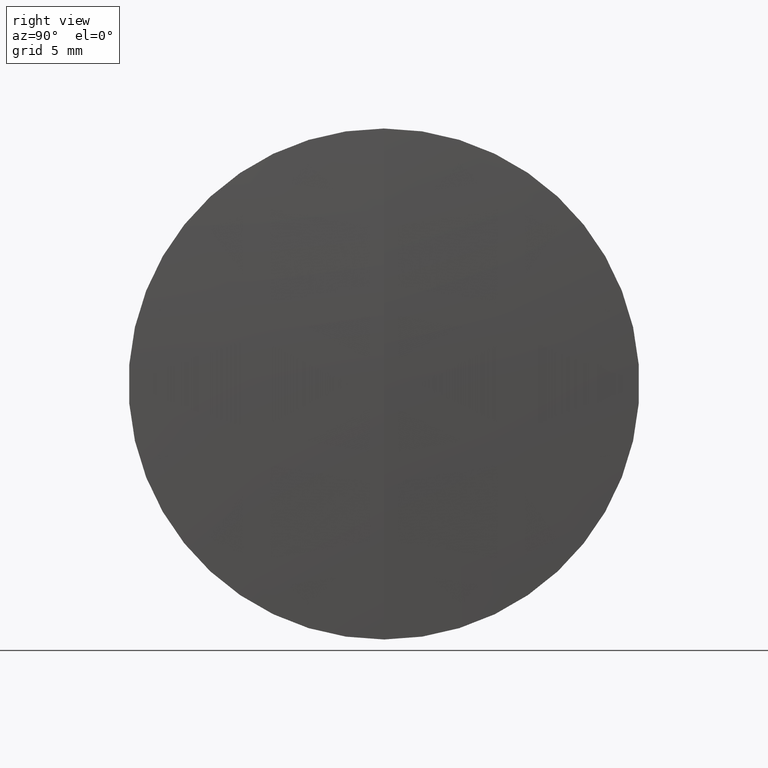
[diagram: clean part render]
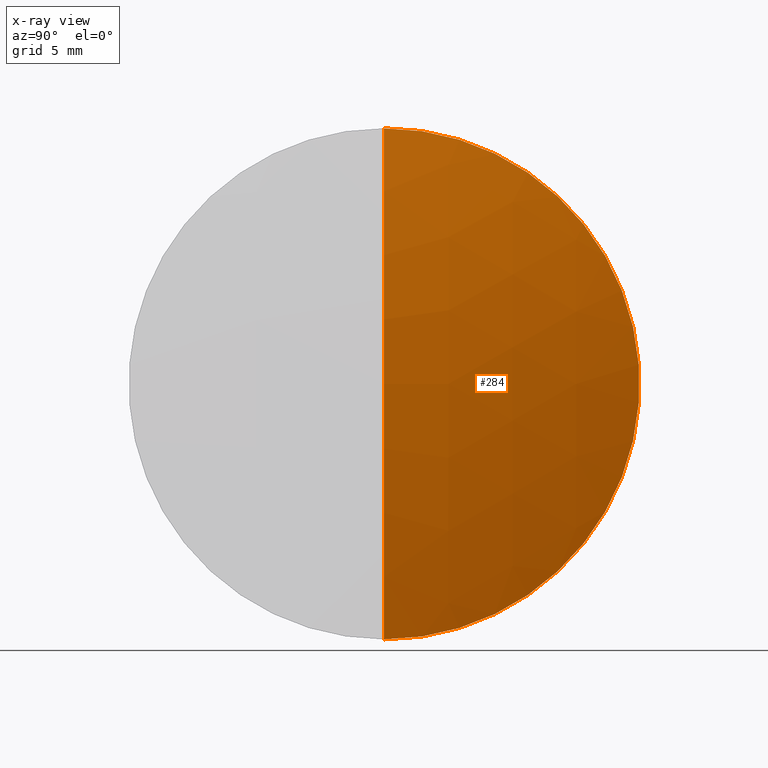
[diagram: x-ray — body ghosted, one internal face saturated and labeled with its STEP entity id]
A machine part, right view, then the same camera in x-ray: the body is ghosted and one INTERNAL B-rep face — a face not visible from any outside direction — is saturated and labeled: STEP entity #284.
In plain terms, the highlighted spherical surface has radius 57 mm.
Its self-contained STEP definition (entity closure, byte-faithful):
#10 = AXIS2_PLACEMENT_3D ( 'NONE', #191, #13, #168 ) ;
#13 = DIRECTION ( 'NONE',  ( -0.0000000000000000000, 1.000000000000000000, 1.224646799147353200E-016 ) ) ;
#16 = AXIS2_PLACEMENT_3D ( 'NONE', #241, #185, #32 ) ;
#23 = ORIENTED_EDGE ( 'NONE', *, *, #202, .F. ) ;
#32 = DIRECTION ( 'NONE',  ( 0.0000000000000000000, 0.0000000000000000000, -1.000000000000000000 ) ) ;
#54 = FACE_OUTER_BOUND ( 'NONE', #298, .T. ) ;
#56 = DIRECTION ( 'NONE',  ( 0.0000000000000000000, 0.0000000000000000000, 1.000000000000000000 ) ) ;
#76 = VERTEX_POINT ( 'NONE', #143 ) ;
#84 = EDGE_CURVE ( 'NONE', #76, #289, #136, .T. ) ;
#90 = AXIS2_PLACEMENT_3D ( 'NONE', #195, #310, #338 ) ;
#136 = CIRCLE ( 'NONE', #10, 57.00000000000033400 ) ;
#143 = CARTESIAN_POINT ( 'NONE',  ( 237.9005007387524700, 0.0000000000000000000, 3.273402943072876500E-015 ) ) ;
#144 = ORIENTED_EDGE ( 'NONE', *, *, #84, .T. ) ;
#168 = DIRECTION ( 'NONE',  ( 0.0000000000000000000, -1.224646799147353200E-016, 1.000000000000000000 ) ) ;
#183 = CARTESIAN_POINT ( 'NONE',  ( 235.8914090782225800, 0.0000000000000000000, 0.0000000000000000000 ) ) ;
#185 = DIRECTION ( 'NONE',  ( 0.0000000000000000000, -1.000000000000000000, 0.0000000000000000000 ) ) ;
#187 = ORIENTED_EDGE ( 'NONE', *, *, #313, .F. ) ;
#191 = CARTESIAN_POINT ( 'NONE',  ( 180.9005007387521300, 0.0000000000000000000, -2.168404344971008900E-016 ) ) ;
#195 = CARTESIAN_POINT ( 'NONE',  ( 180.9005007387521300, 0.0000000000000000000, -2.168404344971008900E-016 ) ) ;
#202 = EDGE_CURVE ( 'NONE', #76, #263, #222, .T. ) ;
#208 = DIRECTION ( 'NONE',  ( -1.000000000000000000, -0.0000000000000000000, -0.0000000000000000000 ) ) ;
#222 = CIRCLE ( 'NONE', #16, 57.00000000000033400 ) ;
#229 = SPHERICAL_SURFACE ( 'NONE', #90, 57.00000000000033400 ) ;
#241 = CARTESIAN_POINT ( 'NONE',  ( 180.9005007387521300, 0.0000000000000000000, -2.168404344971008900E-016 ) ) ;
#263 = VERTEX_POINT ( 'NONE', #346 ) ;
#272 = CARTESIAN_POINT ( 'NONE',  ( 235.8914090782225800, 1.836970198721017400E-015, -14.99999999999989700 ) ) ;
#278 = AXIS2_PLACEMENT_3D ( 'NONE', #183, #208, #56 ) ;
#284 = ADVANCED_FACE ( 'NONE', ( #54 ), #229, .T. ) ;
#289 = VERTEX_POINT ( 'NONE', #272 ) ;
#298 = EDGE_LOOP ( 'NONE', ( #23, #144, #187 ) ) ;
#300 = CIRCLE ( 'NONE', #278, 14.99999999999989700 ) ;
#310 = DIRECTION ( 'NONE',  ( 0.0000000000000000000, 1.000000000000000000, 0.0000000000000000000 ) ) ;
#313 = EDGE_CURVE ( 'NONE', #263, #289, #300, .T. ) ;
#338 = DIRECTION ( 'NONE',  ( 0.0000000000000000000, 0.0000000000000000000, 1.000000000000000000 ) ) ;
#346 = CARTESIAN_POINT ( 'NONE',  ( 235.8914090782225800, 0.0000000000000000000, 14.99999999999989700 ) ) ;